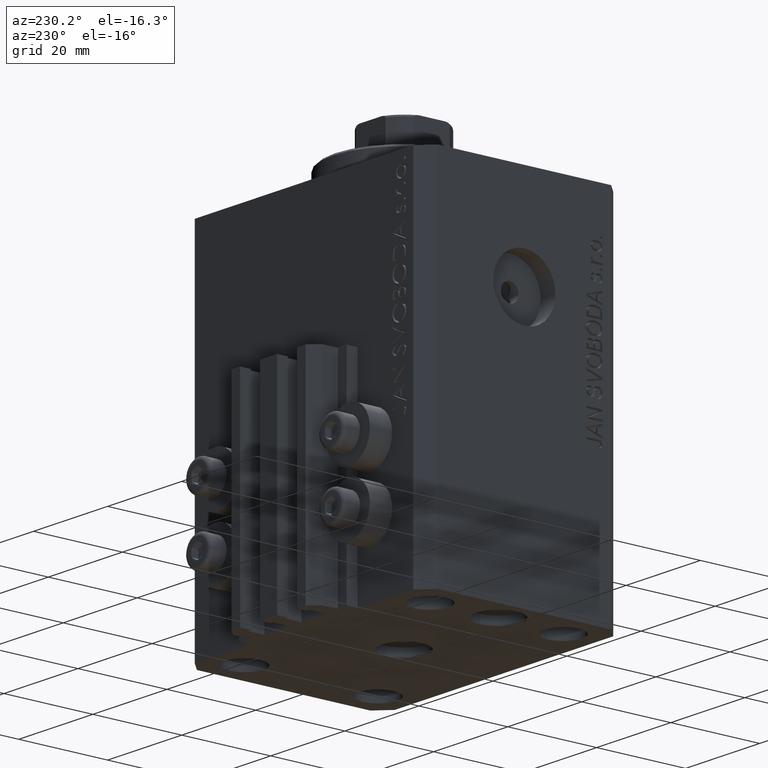
[diagram: clean part render]
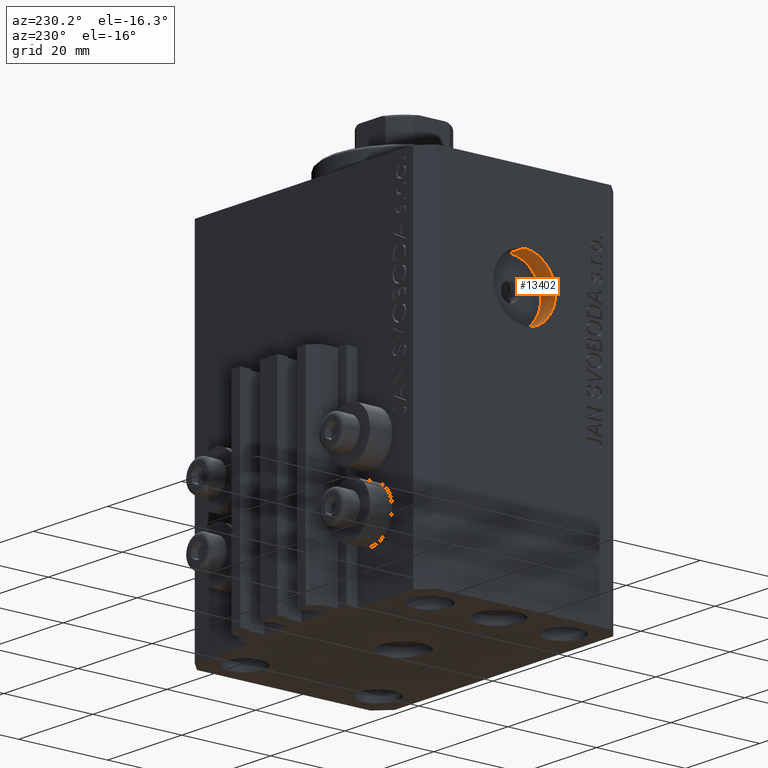
[diagram: same view with one face highlighted and labeled with its STEP entity id]
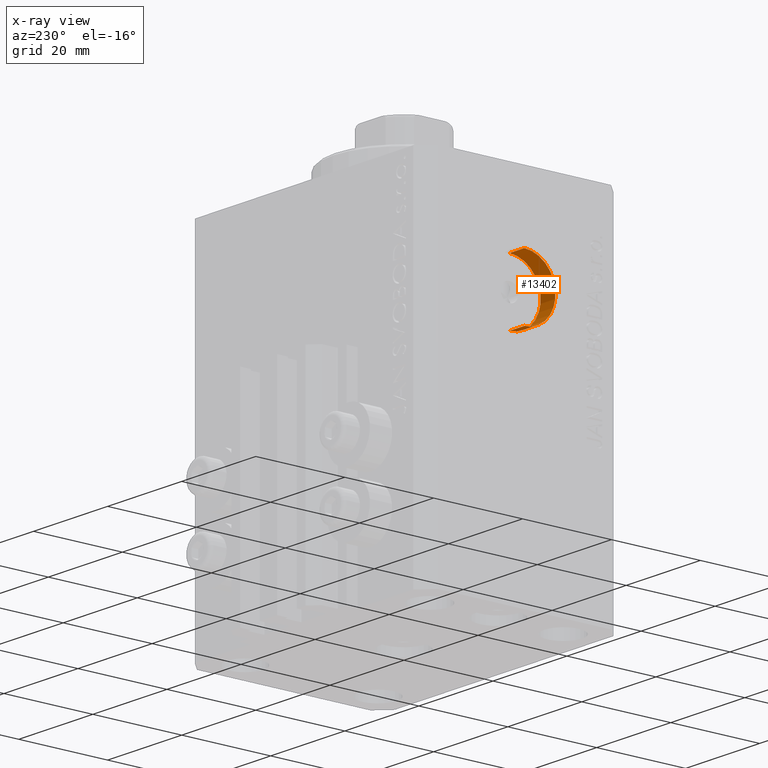
[diagram: x-ray of the same camera — body ghosted, the highlighted face saturated]
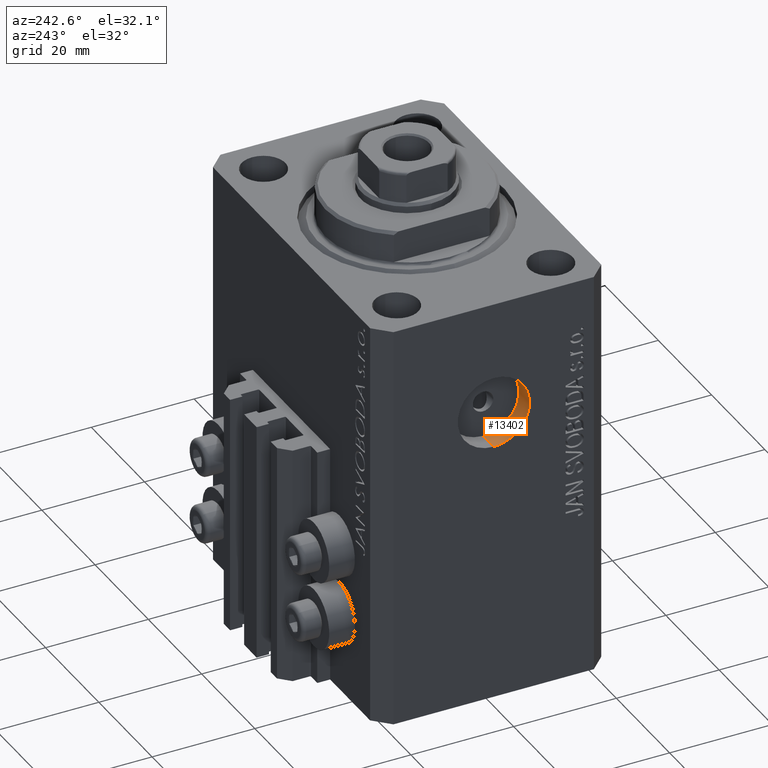
[diagram: same view with one face highlighted and labeled with its STEP entity id]
A machine part, auxiliary view. The second image highlights one B-rep face of the part: STEP entity #13402.
The next image is the same camera in x-ray: the body ghosted, the highlighted face saturated — about 0% of this face is hidden behind the body in this view.
A second angle (auxiliary view) of the same face is appended — the face is thin or edge-on in the first view.
In plain terms, the highlighted cylindrical surface (partial cylindrical patch) has radius 7 mm, axis along (-1, -0, -0).
Its self-contained STEP definition (entity closure, byte-faithful):
#627 = CARTESIAN_POINT ( 'NONE',  ( -28.49999999999650413, 0.000000000000000000, -22.00000000000000000 ) ) ;
#2212 = DIRECTION ( 'NONE',  ( -1.000000000000000000, -0.000000000000000000, -0.000000000000000000 ) ) ;
#2519 = VERTEX_POINT ( 'NONE', #19663 ) ;
#3927 = VERTEX_POINT ( 'NONE', #36311 ) ;
#4727 = FACE_OUTER_BOUND ( 'NONE', #37827, .T. ) ;
#6770 = ORIENTED_EDGE ( 'NONE', *, *, #31056, .F. ) ;
#7027 = EDGE_CURVE ( 'NONE', #24693, #2519, #35645, .T. ) ;
#7427 = VECTOR ( 'NONE', #16940, 1000.000000000000000 ) ;
#7991 = VECTOR ( 'NONE', #2212, 1000.000000000000000 ) ;
#8538 = DIRECTION ( 'NONE',  ( -1.000000000000000000, 0.000000000000000000, 0.000000000000000000 ) ) ;
#10058 = ORIENTED_EDGE ( 'NONE', *, *, #34440, .T. ) ;
#12549 = LINE ( 'NONE', #35108, #7991 ) ;
#13402 = ADVANCED_FACE ( 'NONE', ( #4727 ), #23462, .F. ) ;
#16940 = DIRECTION ( 'NONE',  ( -1.000000000000000000, -0.000000000000000000, -0.000000000000000000 ) ) ;
#17360 = ORIENTED_EDGE ( 'NONE', *, *, #21555, .F. ) ;
#17487 = AXIS2_PLACEMENT_3D ( 'NONE', #22993, #34020, #37631 ) ;
#19663 = CARTESIAN_POINT ( 'NONE',  ( -32.49999999999650413, 8.572527594031474176E-16, -28.99999999999999645 ) ) ;
#20008 = CIRCLE ( 'NONE', #26138, 6.999999999999999112 ) ;
#20650 = DIRECTION ( 'NONE',  ( -1.000000000000000000, 0.000000000000000000, 0.000000000000000000 ) ) ;
#21555 = EDGE_CURVE ( 'NONE', #24693, #22915, #20008, .T. ) ;
#22915 = VERTEX_POINT ( 'NONE', #27980 ) ;
#22993 = CARTESIAN_POINT ( 'NONE',  ( -28.49999999999650413, 0.000000000000000000, -22.00000000000000000 ) ) ;
#23462 = CYLINDRICAL_SURFACE ( 'NONE', #17487, 6.999999999999999112 ) ;
#24693 = VERTEX_POINT ( 'NONE', #28758 ) ;
#26138 = AXIS2_PLACEMENT_3D ( 'NONE', #627, #8538, #40949 ) ;
#27394 = ORIENTED_EDGE ( 'NONE', *, *, #7027, .T. ) ;
#27980 = CARTESIAN_POINT ( 'NONE',  ( -28.49999999999650413, 0.000000000000000000, -15.00000000000000000 ) ) ;
#28758 = CARTESIAN_POINT ( 'NONE',  ( -28.49999999999650413, 8.572527594031474176E-16, -28.99999999999999645 ) ) ;
#30958 = CARTESIAN_POINT ( 'NONE',  ( -32.49999999999650413, 0.000000000000000000, -22.00000000000000000 ) ) ;
#31056 = EDGE_CURVE ( 'NONE', #22915, #3927, #12549, .T. ) ;
#31913 = DIRECTION ( 'NONE',  ( 0.000000000000000000, 0.000000000000000000, 1.000000000000000000 ) ) ;
#34020 = DIRECTION ( 'NONE',  ( -1.000000000000000000, -0.000000000000000000, -0.000000000000000000 ) ) ;
#34440 = EDGE_CURVE ( 'NONE', #2519, #3927, #37945, .T. ) ;
#35108 = CARTESIAN_POINT ( 'NONE',  ( -28.49999999999650413, 0.000000000000000000, -15.00000000000000000 ) ) ;
#35645 = LINE ( 'NONE', #46683, #7427 ) ;
#36311 = CARTESIAN_POINT ( 'NONE',  ( -32.49999999999650413, 0.000000000000000000, -15.00000000000000000 ) ) ;
#37631 = DIRECTION ( 'NONE',  ( 0.000000000000000000, 0.000000000000000000, 1.000000000000000000 ) ) ;
#37827 = EDGE_LOOP ( 'NONE', ( #17360, #27394, #10058, #6770 ) ) ;
#37945 = CIRCLE ( 'NONE', #47143, 6.999999999999999112 ) ;
#40949 = DIRECTION ( 'NONE',  ( 0.000000000000000000, 0.000000000000000000, 1.000000000000000000 ) ) ;
#46683 = CARTESIAN_POINT ( 'NONE',  ( -28.49999999999650413, 8.572527594031473190E-16, -28.99999999999999645 ) ) ;
#47143 = AXIS2_PLACEMENT_3D ( 'NONE', #30958, #20650, #31913 ) ;